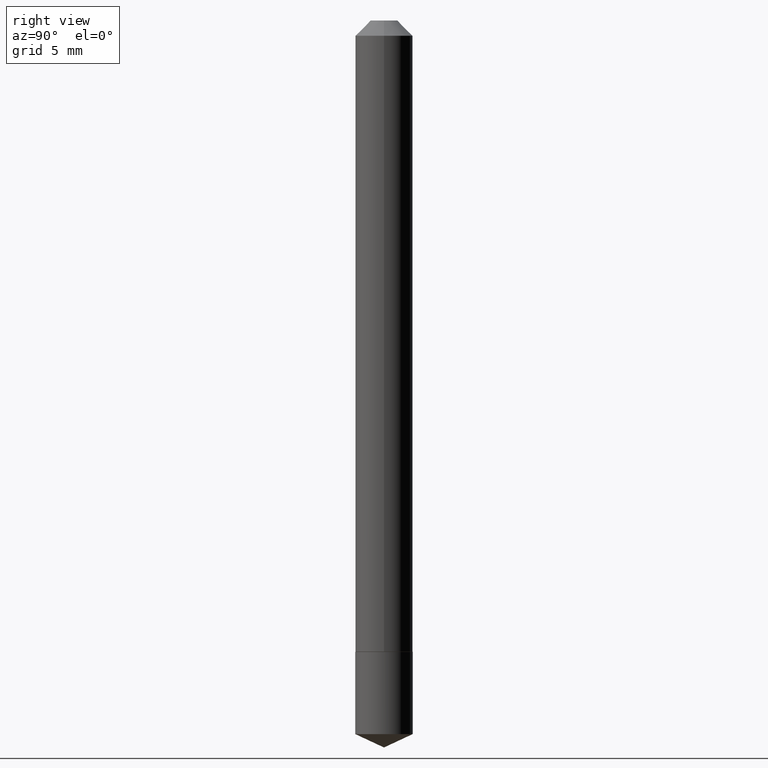
[diagram: clean part render]
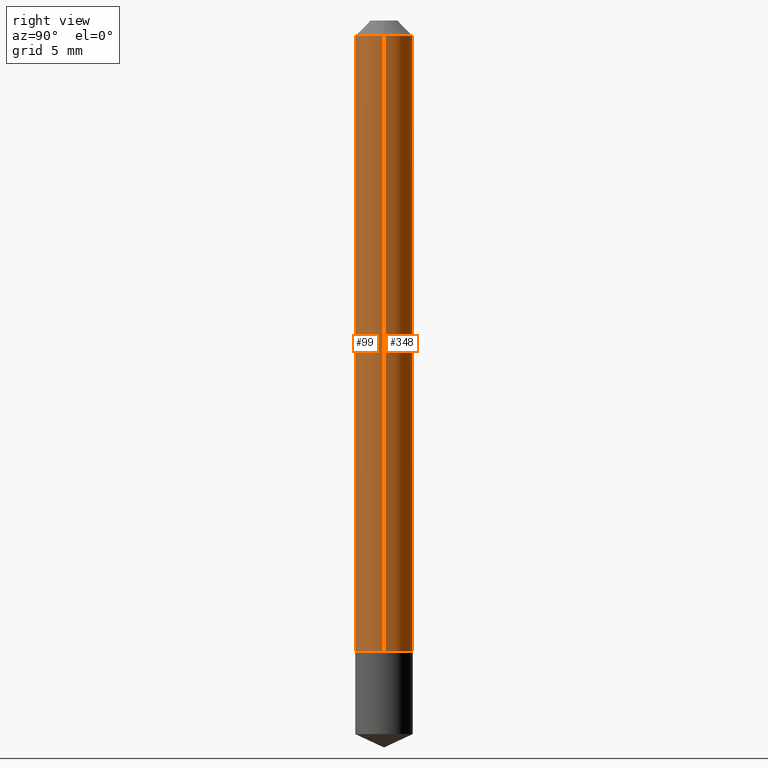
[diagram: same view with one multi-face feature highlighted, each face labeled with its STEP entity id]
A machine part, right view. The highlighted faces form ONE feature: a constant-radius fillet chain: 2 tangent blend faces with common blend radius 1.4999 mm. The faces share edges in the B-rep.
Their STEP definitions:
[1] entity #99 (Cylinder):
#2 = AXIS2_PLACEMENT_3D ( 'NONE', #24, #349, #142 ) ;
#6 = CARTESIAN_POINT ( 'NONE',  ( 3.175930338592637077E-29, -4.534386814755593230E-15, -1.298699999999999966 ) ) ;
#9 = AXIS2_PLACEMENT_3D ( 'NONE', #223, #344, #75 ) ;
#20 = EDGE_CURVE ( 'NONE', #154, #63, #226, .T. ) ;
#24 = CARTESIAN_POINT ( 'NONE',  ( 0.000000000000000000, 0.000000000000000000, 0.000000000000000000 ) ) ;
#25 = EDGE_CURVE ( 'NONE', #388, #210, #357, .T. ) ;
#32 = AXIS2_PLACEMENT_3D ( 'NONE', #6, #252, #194 ) ;
#45 = CARTESIAN_POINT ( 'NONE',  ( -0.05905000000000000526, -1.902172317830880095E-15, -0.03125000000000021511 ) ) ;
#53 = EDGE_CURVE ( 'NONE', #63, #210, #248, .T. ) ;
#63 = VERTEX_POINT ( 'NONE', #45 ) ;
#70 = VECTOR ( 'NONE', #386, 39.37007874015748143 ) ;
#75 = DIRECTION ( 'NONE',  ( 1.000000000000000000, -6.982962677686267499E-15, 0.000000000000000000 ) ) ;
#95 = ORIENTED_EDGE ( 'NONE', *, *, #25, .T. ) ;
#99 = ADVANCED_FACE ( 'NONE', ( #378 ), #114, .T. ) ;
#114 = CYLINDRICAL_SURFACE ( 'NONE', #2, 0.05905000000000008159 ) ;
#142 = DIRECTION ( 'NONE',  ( 1.000000000000000000, -6.982962677686267499E-15, 4.876176775795936353E-29 ) ) ;
#143 = CARTESIAN_POINT ( 'NONE',  ( 0.05905000000000015792, -4.946730760872968939E-15, -1.298699999999999966 ) ) ;
#154 = VERTEX_POINT ( 'NONE', #264 ) ;
#156 = CARTESIAN_POINT ( 'NONE',  ( 0.05905000000000000526, -5.214527379562231333E-16, -0.03125000000000021511 ) ) ;
#157 = DIRECTION ( 'NONE',  ( -2.445468806185136877E-29, 3.491481338843145188E-15, 1.000000000000000000 ) ) ;
#177 = ORIENTED_EDGE ( 'NONE', *, *, #53, .F. ) ;
#178 = CIRCLE ( 'NONE', #32, 0.05905000000000015792 ) ;
#184 = EDGE_CURVE ( 'NONE', #154, #388, #178, .T. ) ;
#194 = DIRECTION ( 'NONE',  ( 1.000000000000000000, -6.982962677686270655E-15, 0.000000000000000000 ) ) ;
#204 = ORIENTED_EDGE ( 'NONE', *, *, #184, .T. ) ;
#210 = VERTEX_POINT ( 'NONE', #156 ) ;
#223 = CARTESIAN_POINT ( 'NONE',  ( 7.642090019328604414E-31, -1.091087918388490513E-16, -0.03125000000000021511 ) ) ;
#226 = LINE ( 'NONE', #246, #70 ) ;
#236 = ORIENTED_EDGE ( 'NONE', *, *, #20, .F. ) ;
#245 = EDGE_LOOP ( 'NONE', ( #236, #204, #95, #177 ) ) ;
#246 = CARTESIAN_POINT ( 'NONE',  ( -0.05905000000000008159, 4.195754854663397395E-16, -2.904631170795525745E-30 ) ) ;
#248 = CIRCLE ( 'NONE', #9, 0.05905000000000000526 ) ;
#252 = DIRECTION ( 'NONE',  ( -2.445468806185136597E-29, 3.491481338843145583E-15, 1.000000000000000000 ) ) ;
#264 = CARTESIAN_POINT ( 'NONE',  ( -0.05905000000000015792, -4.114811329289252948E-15, -1.298699999999999966 ) ) ;
#289 = VECTOR ( 'NONE', #157, 39.37007874015748143 ) ;
#342 = CARTESIAN_POINT ( 'NONE',  ( 0.05905000000000008159, -4.123439461173746736E-16, 2.879382386107504424E-30 ) ) ;
#344 = DIRECTION ( 'NONE',  ( -2.445468806185136597E-29, 3.491481338843145583E-15, 1.000000000000000000 ) ) ;
#349 = DIRECTION ( 'NONE',  ( -2.445468806185136597E-29, 3.491481338843145583E-15, 1.000000000000000000 ) ) ;
#357 = LINE ( 'NONE', #342, #289 ) ;
#378 = FACE_OUTER_BOUND ( 'NONE', #245, .T. ) ;
#386 = DIRECTION ( 'NONE',  ( -2.445468806185136877E-29, 3.491481338843145188E-15, 1.000000000000000000 ) ) ;
#388 = VERTEX_POINT ( 'NONE', #143 ) ;
[2] entity #348 (Cylinder):
#7 = EDGE_LOOP ( 'NONE', ( #213, #218, #68, #185 ) ) ;
#11 = CIRCLE ( 'NONE', #18, 0.05905000000000000526 ) ;
#18 = AXIS2_PLACEMENT_3D ( 'NONE', #60, #85, #257 ) ;
#20 = EDGE_CURVE ( 'NONE', #154, #63, #226, .T. ) ;
#21 = DIRECTION ( 'NONE',  ( 1.000000000000000000, -6.982962677686267499E-15, 4.876176775795936353E-29 ) ) ;
#25 = EDGE_CURVE ( 'NONE', #388, #210, #357, .T. ) ;
#45 = CARTESIAN_POINT ( 'NONE',  ( -0.05905000000000000526, -1.902172317830880095E-15, -0.03125000000000021511 ) ) ;
#60 = CARTESIAN_POINT ( 'NONE',  ( 7.642090019328604414E-31, -1.091087918388490513E-16, -0.03125000000000021511 ) ) ;
#63 = VERTEX_POINT ( 'NONE', #45 ) ;
#68 = ORIENTED_EDGE ( 'NONE', *, *, #92, .F. ) ;
#70 = VECTOR ( 'NONE', #386, 39.37007874015748143 ) ;
#85 = DIRECTION ( 'NONE',  ( -2.445468806185136597E-29, 3.491481338843145583E-15, 1.000000000000000000 ) ) ;
#92 = EDGE_CURVE ( 'NONE', #210, #63, #11, .T. ) ;
#135 = DIRECTION ( 'NONE',  ( -2.445468806185136597E-29, 3.491481338843145583E-15, 1.000000000000000000 ) ) ;
#143 = CARTESIAN_POINT ( 'NONE',  ( 0.05905000000000015792, -4.946730760872968939E-15, -1.298699999999999966 ) ) ;
#147 = FACE_OUTER_BOUND ( 'NONE', #7, .T. ) ;
#154 = VERTEX_POINT ( 'NONE', #264 ) ;
#156 = CARTESIAN_POINT ( 'NONE',  ( 0.05905000000000000526, -5.214527379562231333E-16, -0.03125000000000021511 ) ) ;
#157 = DIRECTION ( 'NONE',  ( -2.445468806185136877E-29, 3.491481338843145188E-15, 1.000000000000000000 ) ) ;
#174 = CARTESIAN_POINT ( 'NONE',  ( 0.000000000000000000, 0.000000000000000000, 0.000000000000000000 ) ) ;
#185 = ORIENTED_EDGE ( 'NONE', *, *, #25, .F. ) ;
#210 = VERTEX_POINT ( 'NONE', #156 ) ;
#213 = ORIENTED_EDGE ( 'NONE', *, *, #271, .T. ) ;
#218 = ORIENTED_EDGE ( 'NONE', *, *, #20, .T. ) ;
#225 = CIRCLE ( 'NONE', #266, 0.05905000000000015792 ) ;
#226 = LINE ( 'NONE', #246, #70 ) ;
#246 = CARTESIAN_POINT ( 'NONE',  ( -0.05905000000000008159, 4.195754854663397395E-16, -2.904631170795525745E-30 ) ) ;
#254 = CARTESIAN_POINT ( 'NONE',  ( 3.175930338592637077E-29, -4.534386814755593230E-15, -1.298699999999999966 ) ) ;
#257 = DIRECTION ( 'NONE',  ( 1.000000000000000000, -6.982962677686267499E-15, 0.000000000000000000 ) ) ;
#264 = CARTESIAN_POINT ( 'NONE',  ( -0.05905000000000015792, -4.114811329289252948E-15, -1.298699999999999966 ) ) ;
#266 = AXIS2_PLACEMENT_3D ( 'NONE', #254, #135, #285 ) ;
#271 = EDGE_CURVE ( 'NONE', #388, #154, #225, .T. ) ;
#285 = DIRECTION ( 'NONE',  ( 1.000000000000000000, -6.982962677686270655E-15, 0.000000000000000000 ) ) ;
#289 = VECTOR ( 'NONE', #157, 39.37007874015748143 ) ;
#293 = CYLINDRICAL_SURFACE ( 'NONE', #294, 0.05905000000000008159 ) ;
#294 = AXIS2_PLACEMENT_3D ( 'NONE', #174, #318, #21 ) ;
#318 = DIRECTION ( 'NONE',  ( -2.445468806185136597E-29, 3.491481338843145583E-15, 1.000000000000000000 ) ) ;
#342 = CARTESIAN_POINT ( 'NONE',  ( 0.05905000000000008159, -4.123439461173746736E-16, 2.879382386107504424E-30 ) ) ;
#348 = ADVANCED_FACE ( 'NONE', ( #147 ), #293, .T. ) ;
#357 = LINE ( 'NONE', #342, #289 ) ;
#386 = DIRECTION ( 'NONE',  ( -2.445468806185136877E-29, 3.491481338843145188E-15, 1.000000000000000000 ) ) ;
#388 = VERTEX_POINT ( 'NONE', #143 ) ;